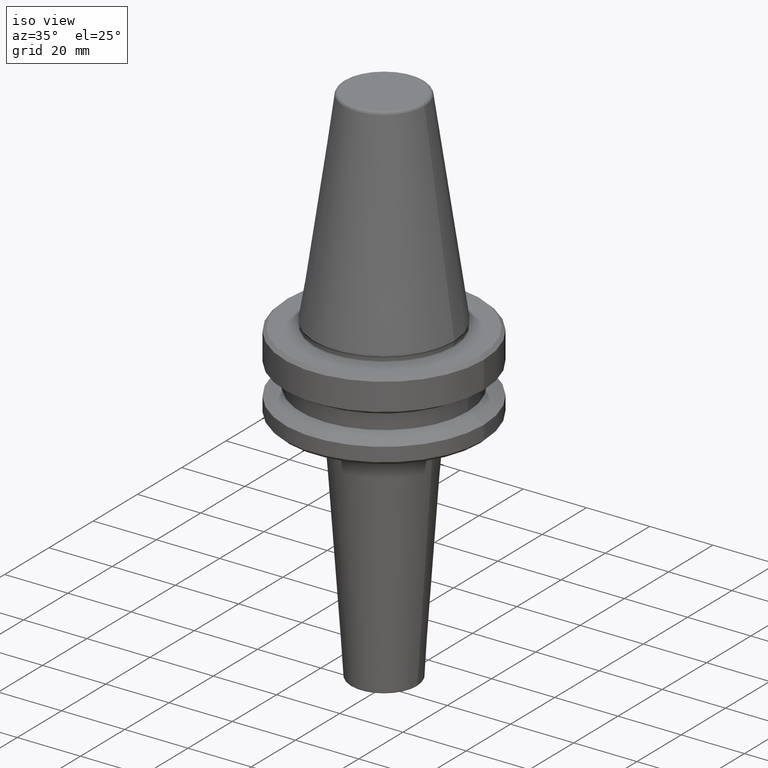
[diagram: clean part render]
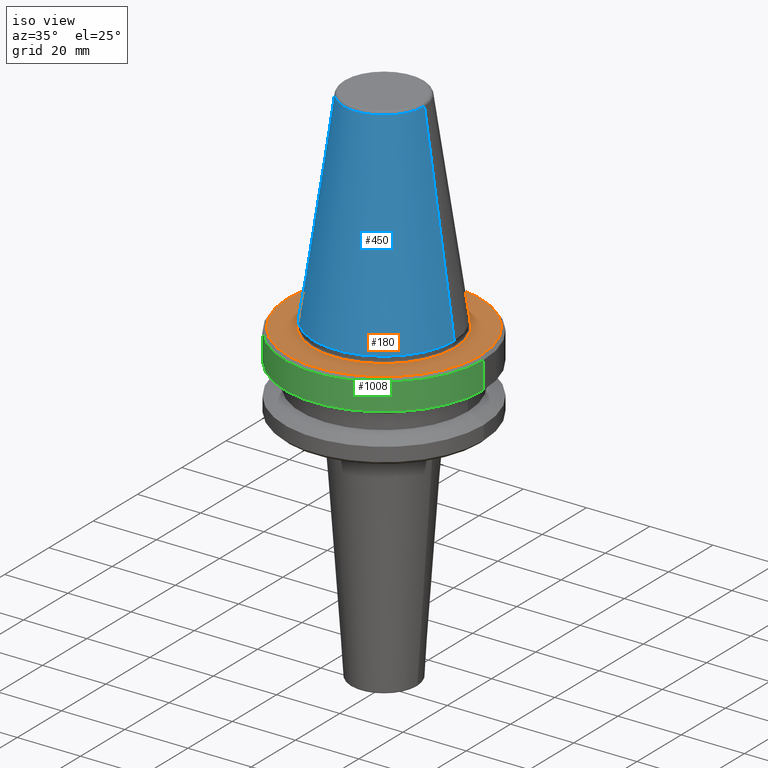
[diagram: same view with three faces highlighted in distinct colors, each labeled with its STEP entity id]
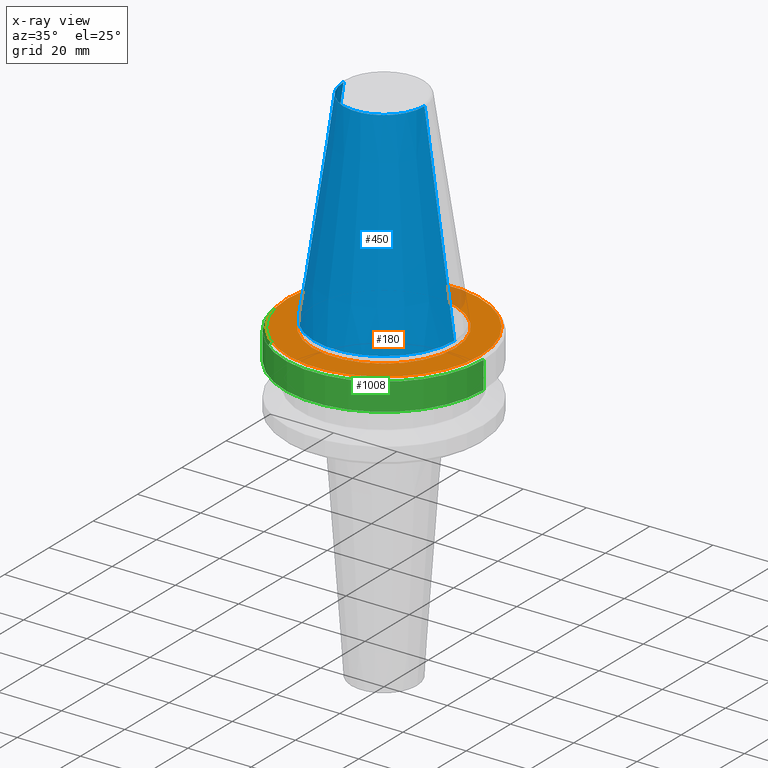
[diagram: x-ray of the same camera — body ghosted, the three highlighted faces saturated]
A machine part, iso view with three faces highlighted in distinct colors.
The next image is the same camera in x-ray (body ghosted, the three faces saturated) — at least one of them is partly hidden behind the body in this view.
Their STEP definitions:

[orange] entity #180 — the highlighted planar face has unit normal (0, 0, -1).
#40 = ORIENTED_EDGE ( 'NONE', *, *, #519, .F. ) ;
#43 = FACE_OUTER_BOUND ( 'NONE', #309, .T. ) ;
#81 = ORIENTED_EDGE ( 'NONE', *, *, #373, .F. ) ;
#82 = DIRECTION ( 'NONE',  ( -0.0000000000000000000, -0.0000000000000000000, 1.000000000000000000 ) ) ;
#138 = AXIS2_PLACEMENT_3D ( 'NONE', #1014, #948, #460 ) ;
#157 = DIRECTION ( 'NONE',  ( -0.0000000000000000000, -0.0000000000000000000, 1.000000000000000000 ) ) ;
#180 = ADVANCED_FACE ( 'NONE', ( #433, #43 ), #960, .F. ) ;
#188 = CIRCLE ( 'NONE', #769, 30.49999999999997200 ) ;
#211 = EDGE_CURVE ( 'NONE', #1035, #607, #188, .T. ) ;
#272 = CARTESIAN_POINT ( 'NONE',  ( 30.49999999999997200, 3.796405077356798300E-015, -67.40000000000034700 ) ) ;
#287 = CARTESIAN_POINT ( 'NONE',  ( -22.49999999999996400, 2.755455298081540400E-015, -67.40000000000034700 ) ) ;
#298 = DIRECTION ( 'NONE',  ( -0.0000000000000000000, -0.0000000000000000000, 1.000000000000000000 ) ) ;
#309 = EDGE_LOOP ( 'NONE', ( #332, #781 ) ) ;
#316 = DIRECTION ( 'NONE',  ( 0.0000000000000000000, 0.0000000000000000000, -1.000000000000000000 ) ) ;
#332 = ORIENTED_EDGE ( 'NONE', *, *, #865, .T. ) ;
#373 = EDGE_CURVE ( 'NONE', #949, #582, #971, .T. ) ;
#433 = FACE_BOUND ( 'NONE', #797, .T. ) ;
#439 = CARTESIAN_POINT ( 'NONE',  ( -30.49999999999997200, 0.0000000000000000000, -67.40000000000034700 ) ) ;
#459 = CIRCLE ( 'NONE', #682, 30.49999999999997200 ) ;
#460 = DIRECTION ( 'NONE',  ( 1.000000000000000000, 0.0000000000000000000, 0.0000000000000000000 ) ) ;
#466 = CIRCLE ( 'NONE', #793, 22.49999999999996400 ) ;
#512 = DIRECTION ( 'NONE',  ( 1.000000000000000000, 0.0000000000000000000, 0.0000000000000000000 ) ) ;
#519 = EDGE_CURVE ( 'NONE', #582, #949, #466, .T. ) ;
#560 = CARTESIAN_POINT ( 'NONE',  ( 0.0000000000000000000, 0.0000000000000000000, -67.40000000000034700 ) ) ;
#582 = VERTEX_POINT ( 'NONE', #287 ) ;
#607 = VERTEX_POINT ( 'NONE', #439 ) ;
#640 = CARTESIAN_POINT ( 'NONE',  ( 0.0000000000000000000, 0.0000000000000000000, -67.40000000000034700 ) ) ;
#641 = DIRECTION ( 'NONE',  ( 1.000000000000000000, 0.0000000000000000000, 0.0000000000000000000 ) ) ;
#682 = AXIS2_PLACEMENT_3D ( 'NONE', #640, #157, #718 ) ;
#718 = DIRECTION ( 'NONE',  ( 1.000000000000000000, 0.0000000000000000000, 0.0000000000000000000 ) ) ;
#762 = CARTESIAN_POINT ( 'NONE',  ( 0.0000000000000000000, 0.0000000000000000000, -67.40000000000034700 ) ) ;
#769 = AXIS2_PLACEMENT_3D ( 'NONE', #560, #82, #641 ) ;
#781 = ORIENTED_EDGE ( 'NONE', *, *, #211, .T. ) ;
#793 = AXIS2_PLACEMENT_3D ( 'NONE', #762, #298, #512 ) ;
#797 = EDGE_LOOP ( 'NONE', ( #81, #40 ) ) ;
#812 = CARTESIAN_POINT ( 'NONE',  ( 22.49999999999996400, 0.0000000000000000000, -67.40000000000034700 ) ) ;
#865 = EDGE_CURVE ( 'NONE', #607, #1035, #459, .T. ) ;
#873 = DIRECTION ( 'NONE',  ( -1.000000000000000000, 0.0000000000000000000, -0.0000000000000000000 ) ) ;
#890 = AXIS2_PLACEMENT_3D ( 'NONE', #981, #316, #873 ) ;
#948 = DIRECTION ( 'NONE',  ( -0.0000000000000000000, -0.0000000000000000000, 1.000000000000000000 ) ) ;
#949 = VERTEX_POINT ( 'NONE', #812 ) ;
#960 = PLANE ( 'NONE',  #890 ) ;
#971 = CIRCLE ( 'NONE', #138, 22.49999999999996400 ) ;
#981 = CARTESIAN_POINT ( 'NONE',  ( 0.0000000000000000000, 0.0000000000000000000, -67.40000000000034700 ) ) ;
#1014 = CARTESIAN_POINT ( 'NONE',  ( 0.0000000000000000000, 0.0000000000000000000, -67.40000000000034700 ) ) ;
#1035 = VERTEX_POINT ( 'NONE', #272 ) ;

[blue] entity #450 — the highlighted conical surface has half-angle 8.297 deg.
#46 = ORIENTED_EDGE ( 'NONE', *, *, #643, .F. ) ;
#84 = VERTEX_POINT ( 'NONE', #1024 ) ;
#103 = DIRECTION ( 'NONE',  ( 0.1443081888881795900, 1.767265616126607700E-017, -0.9895327920891826600 ) ) ;
#112 = VERTEX_POINT ( 'NONE', #711 ) ;
#146 = DIRECTION ( 'NONE',  ( 0.0000000000000000000, 0.0000000000000000000, -1.000000000000000000 ) ) ;
#156 = AXIS2_PLACEMENT_3D ( 'NONE', #820, #348, #915 ) ;
#237 = DIRECTION ( 'NONE',  ( -1.000000000000000000, 0.0000000000000000000, 0.0000000000000000000 ) ) ;
#266 = DIRECTION ( 'NONE',  ( -0.0000000000000000000, -0.0000000000000000000, 1.000000000000000000 ) ) ;
#277 = VECTOR ( 'NONE', #962, 1000.000000000000000 ) ;
#279 = EDGE_CURVE ( 'NONE', #285, #112, #483, .T. ) ;
#285 = VERTEX_POINT ( 'NONE', #454 ) ;
#310 = ORIENTED_EDGE ( 'NONE', *, *, #675, .F. ) ;
#348 = DIRECTION ( 'NONE',  ( -0.0000000000000000000, -0.0000000000000000000, 1.000000000000000000 ) ) ;
#349 = ORIENTED_EDGE ( 'NONE', *, *, #279, .T. ) ;
#395 = VECTOR ( 'NONE', #103, 1000.000000000000000 ) ;
#450 = ADVANCED_FACE ( 'NONE', ( #935 ), #902, .T. ) ;
#454 = CARTESIAN_POINT ( 'NONE',  ( -12.81220206925736900, 0.0000000000000000000, -0.8556918111122247000 ) ) ;
#471 = CARTESIAN_POINT ( 'NONE',  ( -12.81220206925736900, 0.0000000000000000000, -0.8556918111122247000 ) ) ;
#483 = LINE ( 'NONE', #471, #277 ) ;
#489 = ORIENTED_EDGE ( 'NONE', *, *, #999, .T. ) ;
#507 = AXIS2_PLACEMENT_3D ( 'NONE', #734, #266, #822 ) ;
#566 = VERTEX_POINT ( 'NONE', #937 ) ;
#643 = EDGE_CURVE ( 'NONE', #566, #84, #814, .T. ) ;
#671 = CIRCLE ( 'NONE', #156, 22.22499999999993700 ) ;
#673 = CARTESIAN_POINT ( 'NONE',  ( 12.81220206925736900, 1.569042225414513200E-015, -0.8556918111122247000 ) ) ;
#675 = EDGE_CURVE ( 'NONE', #285, #566, #789, .T. ) ;
#706 = CARTESIAN_POINT ( 'NONE',  ( 0.0000000000000000000, 0.0000000000000000000, -0.8556918111122247000 ) ) ;
#711 = CARTESIAN_POINT ( 'NONE',  ( -22.22499999999993700, 2.721777511104985000E-015, -65.40000000000057400 ) ) ;
#734 = CARTESIAN_POINT ( 'NONE',  ( 0.0000000000000000000, 0.0000000000000000000, -0.8556918111122247000 ) ) ;
#750 = AXIS2_PLACEMENT_3D ( 'NONE', #706, #146, #237 ) ;
#789 = CIRCLE ( 'NONE', #507, 12.81220206925736900 ) ;
#814 = LINE ( 'NONE', #673, #395 ) ;
#820 = CARTESIAN_POINT ( 'NONE',  ( 0.0000000000000000000, 0.0000000000000000000, -65.40000000000057400 ) ) ;
#822 = DIRECTION ( 'NONE',  ( 1.000000000000000000, 0.0000000000000000000, 0.0000000000000000000 ) ) ;
#840 = EDGE_LOOP ( 'NONE', ( #46, #310, #349, #489 ) ) ;
#902 = CONICAL_SURFACE ( 'NONE', #750, 12.81220206925736900, 0.1448138077623198300 ) ;
#915 = DIRECTION ( 'NONE',  ( 1.000000000000000000, 0.0000000000000000000, 0.0000000000000000000 ) ) ;
#935 = FACE_OUTER_BOUND ( 'NONE', #840, .T. ) ;
#937 = CARTESIAN_POINT ( 'NONE',  ( 12.81220206925736900, 2.145409868259749100E-015, -0.8556918111122247000 ) ) ;
#962 = DIRECTION ( 'NONE',  ( -0.1443081888881795900, 0.0000000000000000000, -0.9895327920891826600 ) ) ;
#999 = EDGE_CURVE ( 'NONE', #112, #84, #671, .T. ) ;
#1024 = CARTESIAN_POINT ( 'NONE',  ( 22.22499999999993700, 0.0000000000000000000, -65.40000000000057400 ) ) ;

[green] entity #1008 — the highlighted cylindrical surface (partial cylindrical patch) has radius 31.5 mm, axis along (-0, -0, 1).
#1 = DIRECTION ( 'NONE',  ( -0.0000000000000000000, -0.0000000000000000000, 1.000000000000000000 ) ) ;
#53 = VERTEX_POINT ( 'NONE', #381 ) ;
#70 = VECTOR ( 'NONE', #1, 1000.000000000000000 ) ;
#71 = ORIENTED_EDGE ( 'NONE', *, *, #991, .F. ) ;
#90 = EDGE_CURVE ( 'NONE', #333, #53, #322, .T. ) ;
#97 = CARTESIAN_POINT ( 'NONE',  ( 0.0000000000000000000, 0.0000000000000000000, -68.40000000000046000 ) ) ;
#113 = CARTESIAN_POINT ( 'NONE',  ( 31.50000000000008500, 0.0000000000000000000, -76.99985799368391800 ) ) ;
#147 = LINE ( 'NONE', #577, #553 ) ;
#179 = DIRECTION ( 'NONE',  ( 1.000000000000000000, 0.0000000000000000000, 0.0000000000000000000 ) ) ;
#216 = ORIENTED_EDGE ( 'NONE', *, *, #968, .T. ) ;
#259 = CARTESIAN_POINT ( 'NONE',  ( 0.0000000000000000000, 0.0000000000000000000, -76.99985799368391800 ) ) ;
#265 = DIRECTION ( 'NONE',  ( 1.000000000000000000, 0.0000000000000000000, 0.0000000000000000000 ) ) ;
#318 = AXIS2_PLACEMENT_3D ( 'NONE', #97, #657, #179 ) ;
#322 = LINE ( 'NONE', #491, #70 ) ;
#327 = EDGE_LOOP ( 'NONE', ( #882, #216, #842, #71 ) ) ;
#333 = VERTEX_POINT ( 'NONE', #392 ) ;
#343 = DIRECTION ( 'NONE',  ( 1.000000000000000000, 0.0000000000000000000, 0.0000000000000000000 ) ) ;
#363 = CYLINDRICAL_SURFACE ( 'NONE', #506, 31.50000000000008500 ) ;
#371 = CARTESIAN_POINT ( 'NONE',  ( 31.50000000000008500, 0.0000000000000000000, -68.40000000000046000 ) ) ;
#381 = CARTESIAN_POINT ( 'NONE',  ( -31.50000000000008500, 3.857637417314172900E-015, -68.40000000000046000 ) ) ;
#392 = CARTESIAN_POINT ( 'NONE',  ( -31.50000000000008500, 3.857637417314172900E-015, -76.99985799368391800 ) ) ;
#425 = AXIS2_PLACEMENT_3D ( 'NONE', #259, #815, #343 ) ;
#463 = CIRCLE ( 'NONE', #318, 31.50000000000008500 ) ;
#491 = CARTESIAN_POINT ( 'NONE',  ( -31.50000000000008500, 3.857637417314172900E-015, 6.357346922996331500 ) ) ;
#498 = DIRECTION ( 'NONE',  ( -0.0000000000000000000, -0.0000000000000000000, 1.000000000000000000 ) ) ;
#506 = AXIS2_PLACEMENT_3D ( 'NONE', #733, #498, #265 ) ;
#515 = VERTEX_POINT ( 'NONE', #371 ) ;
#553 = VECTOR ( 'NONE', #914, 1000.000000000000000 ) ;
#577 = CARTESIAN_POINT ( 'NONE',  ( 31.50000000000008500, 0.0000000000000000000, 6.357346922996331500 ) ) ;
#657 = DIRECTION ( 'NONE',  ( -0.0000000000000000000, -0.0000000000000000000, 1.000000000000000000 ) ) ;
#680 = VERTEX_POINT ( 'NONE', #113 ) ;
#683 = EDGE_CURVE ( 'NONE', #680, #515, #147, .T. ) ;
#733 = CARTESIAN_POINT ( 'NONE',  ( 0.0000000000000000000, 0.0000000000000000000, 6.357346922996331500 ) ) ;
#809 = CIRCLE ( 'NONE', #425, 31.50000000000008500 ) ;
#815 = DIRECTION ( 'NONE',  ( -0.0000000000000000000, -0.0000000000000000000, 1.000000000000000000 ) ) ;
#842 = ORIENTED_EDGE ( 'NONE', *, *, #683, .T. ) ;
#882 = ORIENTED_EDGE ( 'NONE', *, *, #90, .F. ) ;
#914 = DIRECTION ( 'NONE',  ( -0.0000000000000000000, -0.0000000000000000000, 1.000000000000000000 ) ) ;
#968 = EDGE_CURVE ( 'NONE', #333, #680, #809, .T. ) ;
#991 = EDGE_CURVE ( 'NONE', #53, #515, #463, .T. ) ;
#1001 = FACE_OUTER_BOUND ( 'NONE', #327, .T. ) ;
#1008 = ADVANCED_FACE ( 'NONE', ( #1001 ), #363, .T. ) ;